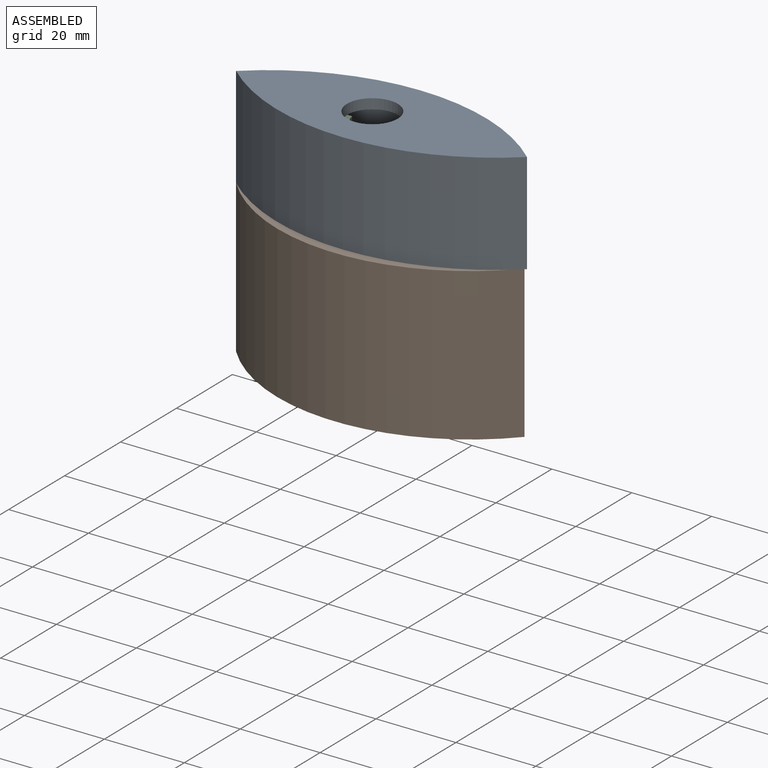
[diagram: assembled view]
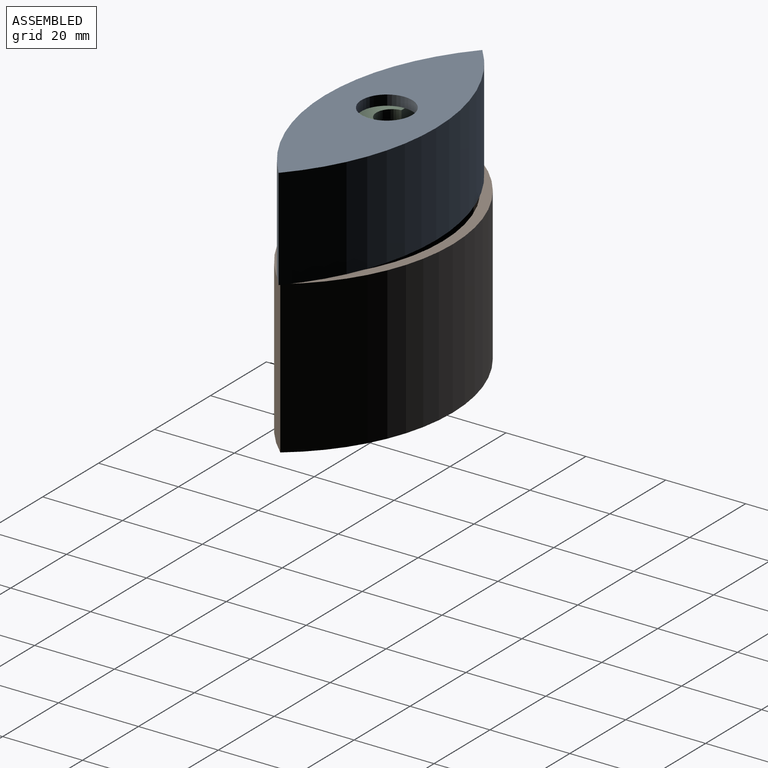
[diagram: assembled view, second angle]
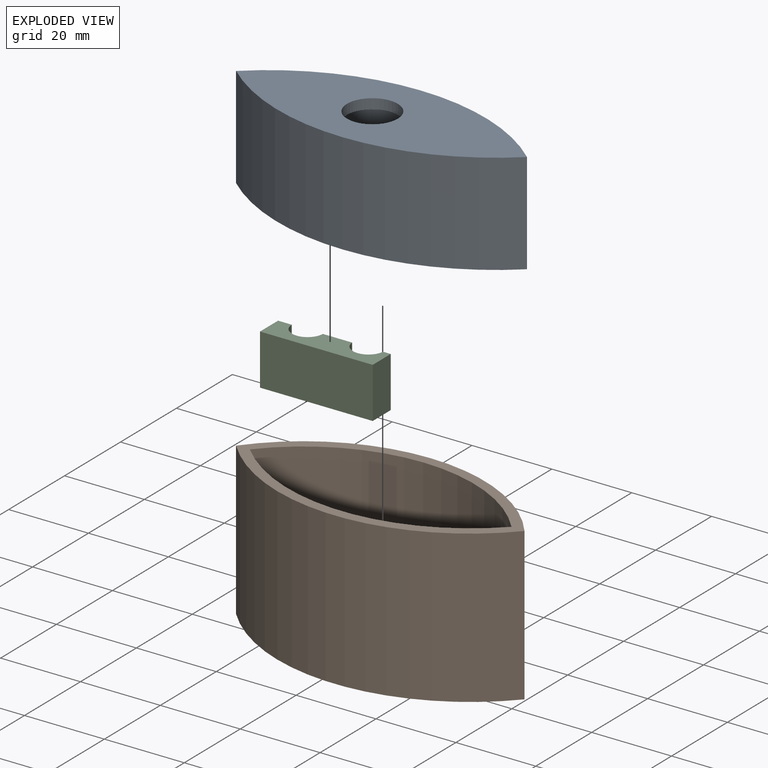
[diagram: exploded view]
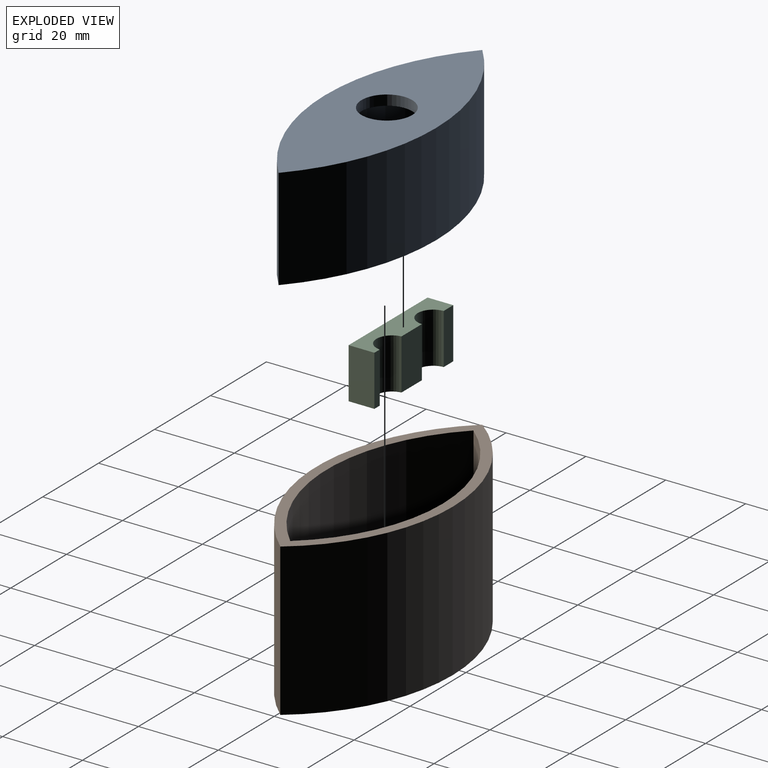
[diagram: exploded view, second angle]
ASSEMBLY  parts=3 mates=2
PART A: 8 faces, bbox 72.8x27.8x25.4 mm
  f0: cylinder r=54.5mm len=72.85mm, axis (0,0,-1), area 2026.4mm2, adj f1,f2,f3
  f1: cylinder r=54.87mm len=72.85mm, axis (0,0,-1), area 2023.4mm2, adj f0,f2,f3
  f2: plane 72.85x27.79mm, normal (0,0,1), area 1261.4mm2, adj f0,f1,f7
  f3: plane 72.85x27.79mm, normal (0,0,-1), area 380.8mm2, adj f0,f1,f4,f5
  f4: cylinder r=51.96mm len=64.97mm, axis (0,0,-1), area 1604.4mm2, adj f3,f5,f6
  f5: cylinder r=52.33mm len=64.97mm, axis (0,0,-1), area 1602.4mm2, adj f3,f4,f6
  f6: plane 64.97x22.71mm, normal (0,0,-1), area 880.6mm2, adj f4,f5,f7
  f7: cylinder r=6.35mm len=12.7mm, axis (0,0,-1), area 101.3mm2, adj f2,f6
PART B: 7 faces, bbox 72.2x34.1x38.1 mm
  f0: cylinder r=45.4mm len=72.24mm, axis (0,0,-1), area 3182.4mm2, adj f1,f2,f3
  f1: cylinder r=48.41mm len=72.24mm, axis (0,0,-1), area 3106.7mm2, adj f0,f2,f3
  f2: plane 72.24x34.07mm, normal (0,0,1), area 397.1mm2, adj f0,f1,f4,f5
  f3: plane 72.24x34.07mm, normal (0,0,-1), area 1712.1mm2, adj f0,f1
  f4: cylinder r=42.86mm len=65.52mm, axis (0,0,-1), area 2652.1mm2, adj f2,f5,f6
  f5: cylinder r=45.87mm len=65.52mm, axis (0,0,-1), area 2595.2mm2, adj f2,f4,f6
  f6: plane 65.52x28.99mm, normal (0,0,1), area 1314.9mm2, adj f4,f5
PART C: 10 faces, bbox 28.2x6.4x12.7 mm
  f0: plane 12.7x3.43mm, normal (0,1,0), area 43.6mm2, adj f1,f7,f8,f9
  f1: plane 12.7x6.45mm, normal (-1,0,0), area 81.9mm2, adj f0,f2,f8,f9
  f2: plane 28.21x12.7mm, normal (0,-1,0), area 358.3mm2, adj f1,f3,f8,f9
  f3: plane 12.7x6.45mm, normal (1,0,0), area 81.9mm2, adj f2,f4,f8,f9
  f4: plane 12.7x1.93mm, normal (0,1,0), area 24.5mm2, adj f3,f5,f8,f9
  f5: cylinder r=3.89mm len=12.7mm, axis (0,0,-1), area 146.4mm2, adj f4,f6,f8,f9
  f6: plane 12.7x7.32mm, normal (0,1,0), area 93mm2, adj f5,f7,f8,f9
  f7: cylinder r=3.89mm len=12.7mm, axis (0,0,-1), area 152.4mm2, adj f0,f6,f8,f9
  f8: plane 28.21x6.45mm, normal (0,0,1), area 137.9mm2, adj f0,f1,f2,f3,f4,f5,f6,f7
  f9: plane 28.21x6.45mm, normal (0,0,-1), area 137.9mm2, adj f0,f1,f2,f3,f4,f5,f6,f7
PLACE A t=(-16.67,-17.47,45.97)mm
PLACE B t=(-8.44,-17.47,7.87)mm
PLACE C t=(-29.12,-23.86,56.13)mm
MATE fastened C.f8 <-> A.f6  axis (0,0,1) through (-14.06,-17.41,68.83)mm
MATE fastened B.f2 <-> A.f3  axis (0,0,1) through (-50.81,-17.47,45.97)mm
